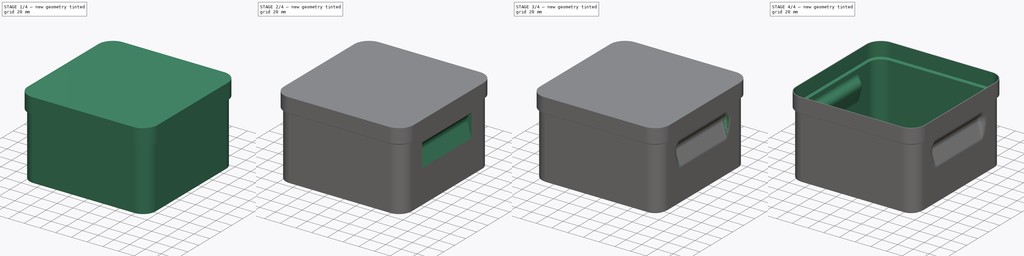
[diagram: build sequence overview — one tinted view per stage of 4, left to right]
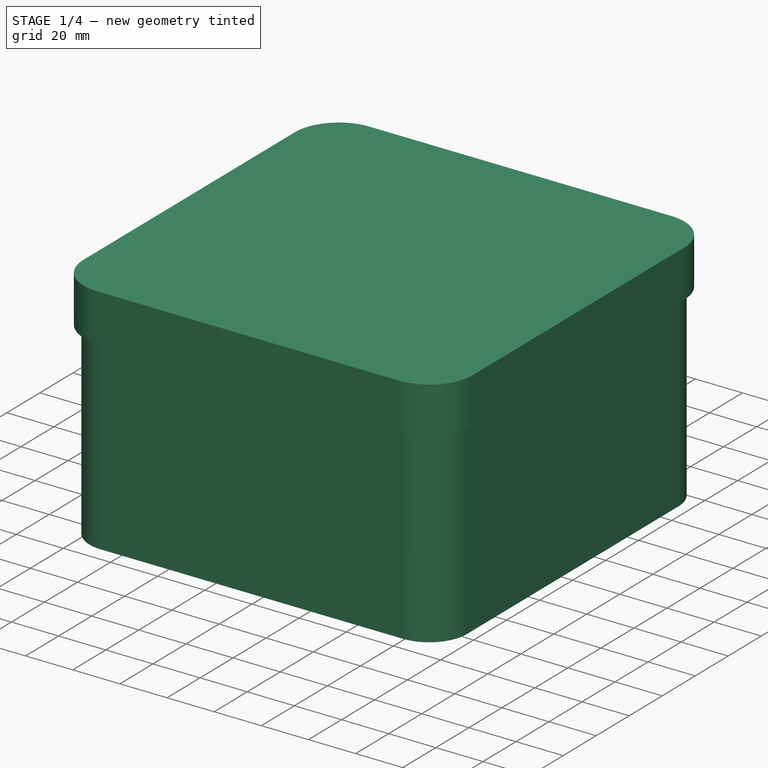
[diagram: stage 1 of 4 — iso view after this stage's code; geometry added in this stage tinted green]
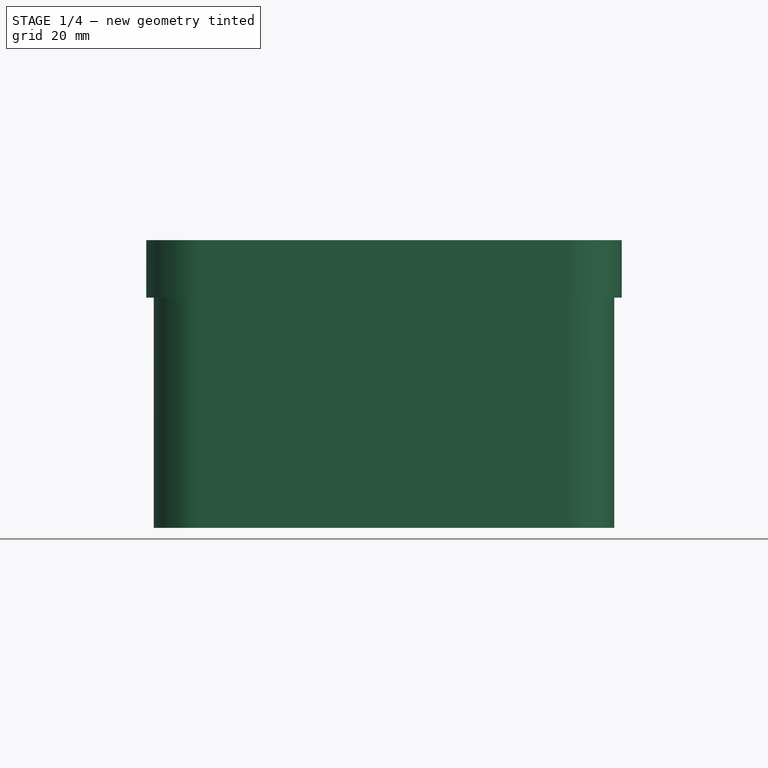
[diagram: stage 1 of 4 — front view after this stage's code; geometry added in this stage tinted green]
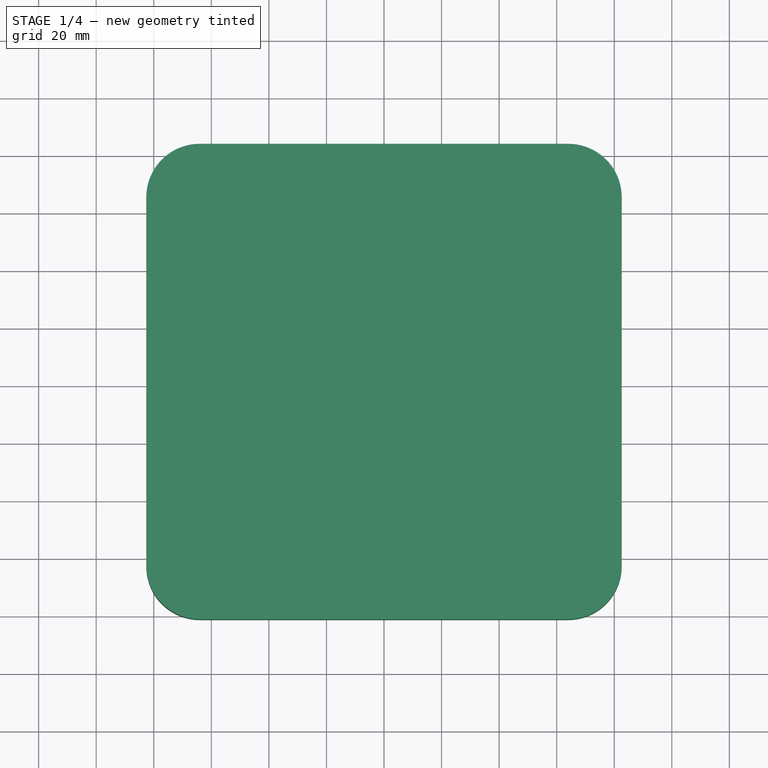
[diagram: stage 1 of 4 — top view after this stage's code; geometry added in this stage tinted green]
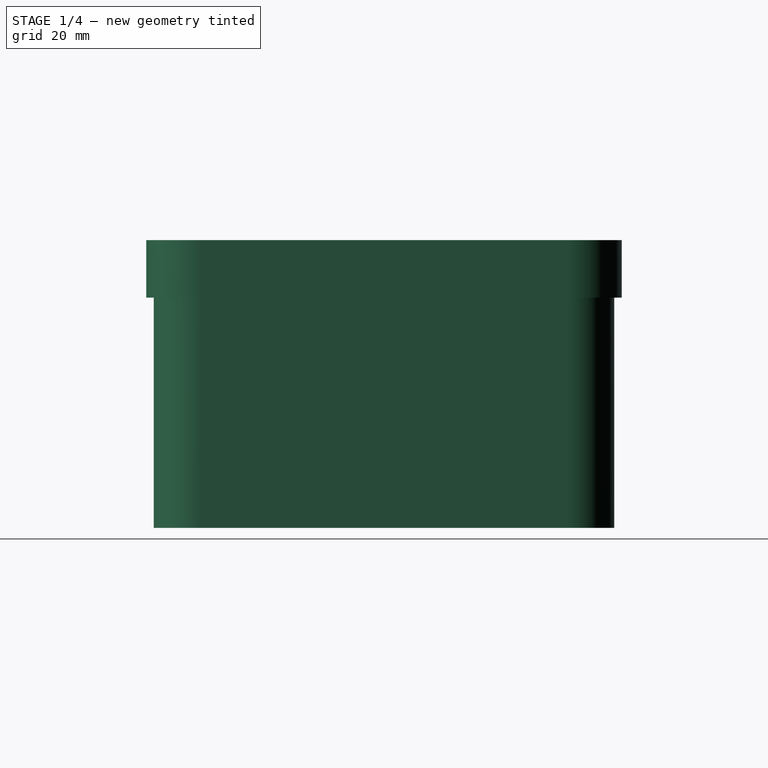
[diagram: stage 1 of 4 — right view after this stage's code; geometry added in this stage tinted green]
FCSTD DOCUMENT  (FreeCAD 0.20R29410 (Git))
Label: _StackableBox
License: Creative Commons Attribution
LicenseURL: http://creativecommons.org/licenses/by/4.0/
objects: Sketcher::SketchObject×3, PartDesign::Pad×2, PartDesign::Chamfer×2, PartDesign::Fillet×2, PartDesign::Body×2, PartDesign::Pocket×1, PartDesign::Mirrored×1, Part::Refine×1, PartDesign::FeatureBase×1, PartDesign::Thickness×1
note: 24 computed .brp shape members not serialized (recipe doc carries the construction recipe); baked Part::Feature solids carry a one-line shape summary decoded from their .brp

FEATURE [Sketcher::SketchObject] Sketch
  FullyConstrained = true
  MapMode = 5
  Support = -> [XY_Plane]
  sketch-geometry (9):
    g0: LineSegment StartX=-80 StartY=-64 StartZ=0 EndX=-80 EndY=64 EndZ=0
    g1: LineSegment StartX=-64 StartY=80 StartZ=0 EndX=64 EndY=80 EndZ=0
    g2: LineSegment StartX=80 StartY=64 StartZ=0 EndX=80 EndY=-64 EndZ=0
    g3: LineSegment StartX=64 StartY=-80 StartZ=0 EndX=-64 EndY=-80 EndZ=0
    g4: GeomPoint X=0 Y=0 Z=0
    g5: ArcOfCircle CenterX=-64 CenterY=64 CenterZ=0 NormalX=0 NormalY=0 NormalZ=1 AngleXU=0 Radius=16 StartAngle=1.5708 EndAngle=3.14159
    g6: ArcOfCircle CenterX=64 CenterY=64 CenterZ=0 NormalX=0 NormalY=0 NormalZ=1 AngleXU=0 Radius=16 StartAngle=1e-16 EndAngle=1.5708
    g7: ArcOfCircle CenterX=64 CenterY=-64 CenterZ=0 NormalX=0 NormalY=0 NormalZ=1 AngleXU=0 Radius=16 StartAngle=4.71239 EndAngle=6.28319
    g8: ArcOfCircle CenterX=-64 CenterY=-64 CenterZ=0 NormalX=0 NormalY=0 NormalZ=1 AngleXU=0 Radius=16 StartAngle=3.14159 EndAngle=4.71239
  constraints (20):
    c: Horizontal(g1)
    c: Horizontal(g3)
    c: Vertical(g0)
    c: Vertical(g2)
    c: Coincident(g4,g-1)
    c: Tangent(g1,g5) = 1.5708
    c: Tangent(g0,g5) = 1.5708
    c: Tangent(g1,g6) = 1.5708
    c: Tangent(g2,g6) = 1.5708
    c: Tangent(g2,g7) = 1.5708
    c: Tangent(g3,g7) = 1.5708
    c: Tangent(g0,g8) = 1.5708
    c: Tangent(g3,g8) = 1.5708
    c: Equal(g5,g6)
    c: Equal(g6,g7)
    c: Equal(g7,g8)
    c: Equal(g0,g1)
    c: Symmetric(g8,g6,g4)
    c: DistanceX(g0,g2) = 160
    c: Radius(g6) = 16
FEATURE [PartDesign::Pad] Pad
  Direction = (0,0,1)
  Length = 80
  Length2 = 10
  Profile = -> Sketch
  ReferenceAxis = -> Sketch [N_Axis]
  Type = 0
FEATURE [Sketcher::SketchObject] Sketch001
  AttachmentOffset = pos=(0,0,80) rot=(0,0,1;0rad)
  ExternalGeometry = -> [Sketch]
  FullyConstrained = true
  MapMode = 5
  Placement = pos=(0,0,80) rot=(0,0,1;0rad)
  Support = -> [XY_Plane]
  expr: .AttachmentOffset.Base.z = Pad.Length
  sketch-geometry (8):
    g0: ArcOfCircle CenterX=-64 CenterY=64 CenterZ=0 NormalX=0 NormalY=0 NormalZ=1 AngleXU=0 Radius=18.6 StartAngle=1.5708 EndAngle=3.14159
    g1: ArcOfCircle CenterX=64 CenterY=64 CenterZ=0 NormalX=0 NormalY=0 NormalZ=1 AngleXU=0 Radius=18.6 StartAngle=1e-16 EndAngle=1.5708
    g2: ArcOfCircle CenterX=64 CenterY=-64 CenterZ=0 NormalX=0 NormalY=0 NormalZ=1 AngleXU=0 Radius=18.6 StartAngle=4.71239 EndAngle=6.28319
    g3: ArcOfCircle CenterX=-64 CenterY=-64 CenterZ=0 NormalX=0 NormalY=0 NormalZ=1 AngleXU=0 Radius=18.6 StartAngle=3.14159 EndAngle=4.71239
    g4: LineSegment StartX=-82.6 StartY=64 StartZ=0 EndX=-82.6 EndY=-64 EndZ=0
    g5: LineSegment StartX=-64 StartY=-82.6 StartZ=0 EndX=64 EndY=-82.6 EndZ=0
    g6: LineSegment StartX=82.6 StartY=-64 StartZ=0 EndX=82.6 EndY=64 EndZ=0
    g7: LineSegment StartX=64 StartY=82.6 StartZ=0 EndX=-64 EndY=82.6 EndZ=0
  constraints (17):
    c: Coincident(g0,g-3)
    c: Coincident(g1,g-4)
    c: Coincident(g2,g-5)
    c: Coincident(g3,g-6)
    c: Vertical(g4)
    c: Coincident(g5,g2)
    c: Horizontal(g5)
    c: Tangent(g5,g2)
    c: Vertical(g6)
    c: Tangent(g7,g0) = -1.5708
    c: Tangent(g4,g0) = -1.5708
    c: Tangent(g4,g3) = -1.5708
    c: Tangent(g5,g3) = -1.5708
    c: Tangent(g6,g2) = -1.5708
    c: Tangent(g6,g1) = -1.5708
    c: Tangent(g7,g1) = -1.5708
    c: DistanceX(g0,g-3) = 2.6
FEATURE [PartDesign::Pad] Pad001
  BaseFeature = -> Pad
  Direction = (0,0,1)
  Length = 20
  Length2 = 10
  Profile = -> Sketch001
  ReferenceAxis = -> Sketch001 [N_Axis]
  Type = 0
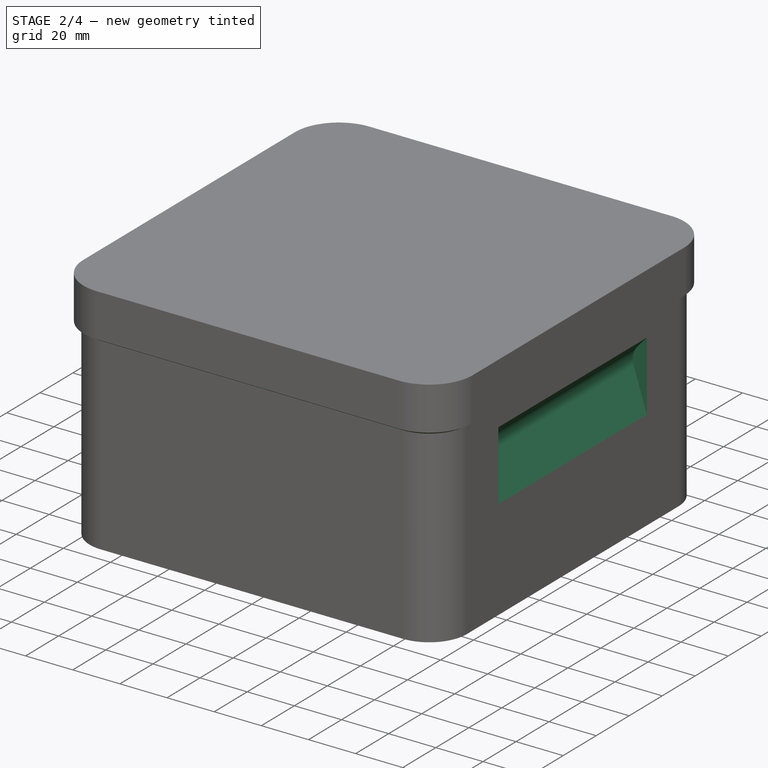
[diagram: stage 2 of 4 — iso view after this stage's code; geometry added in this stage tinted green]
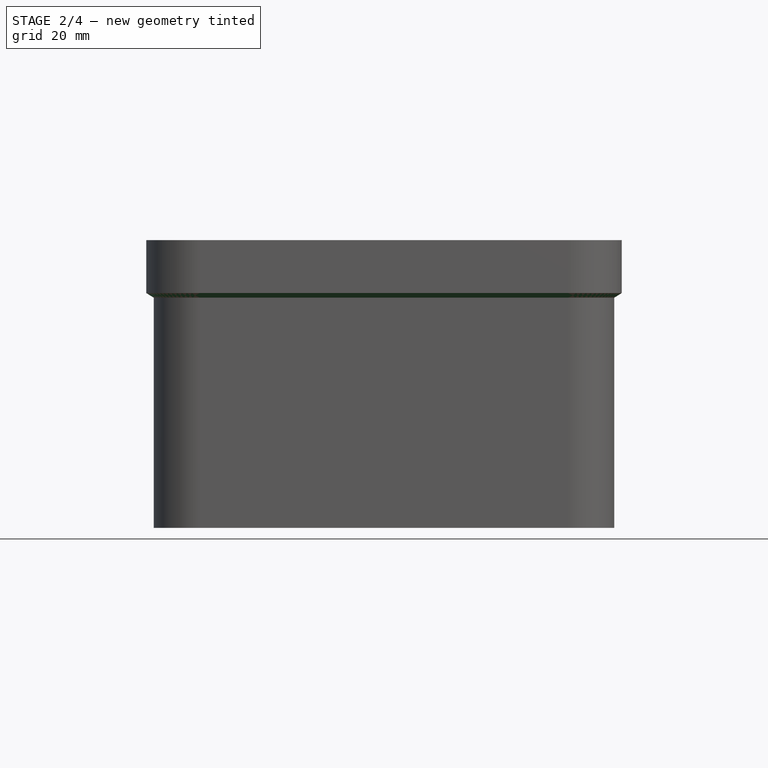
[diagram: stage 2 of 4 — front view after this stage's code; geometry added in this stage tinted green]
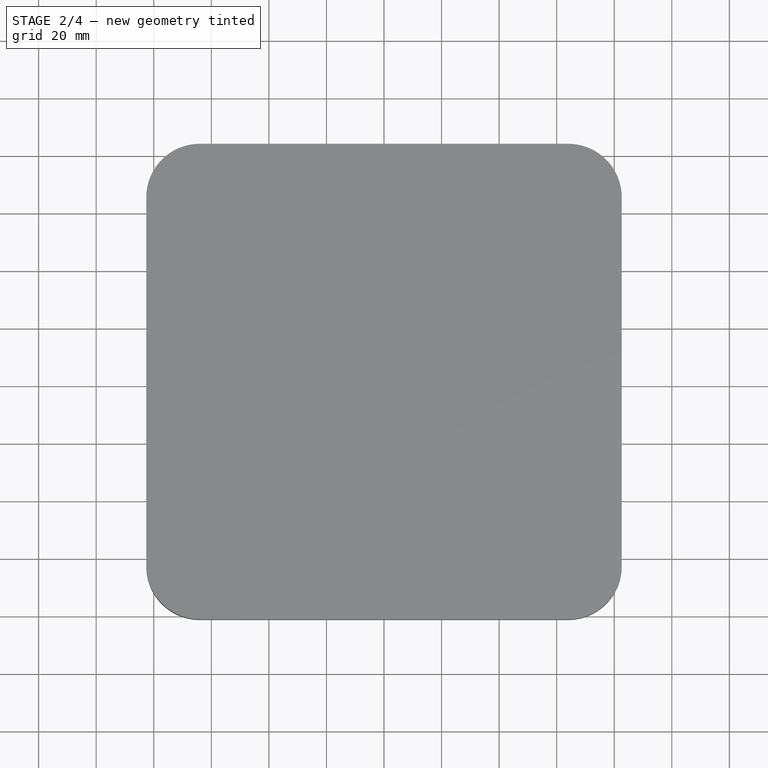
[diagram: stage 2 of 4 — top view after this stage's code; geometry added in this stage tinted green]
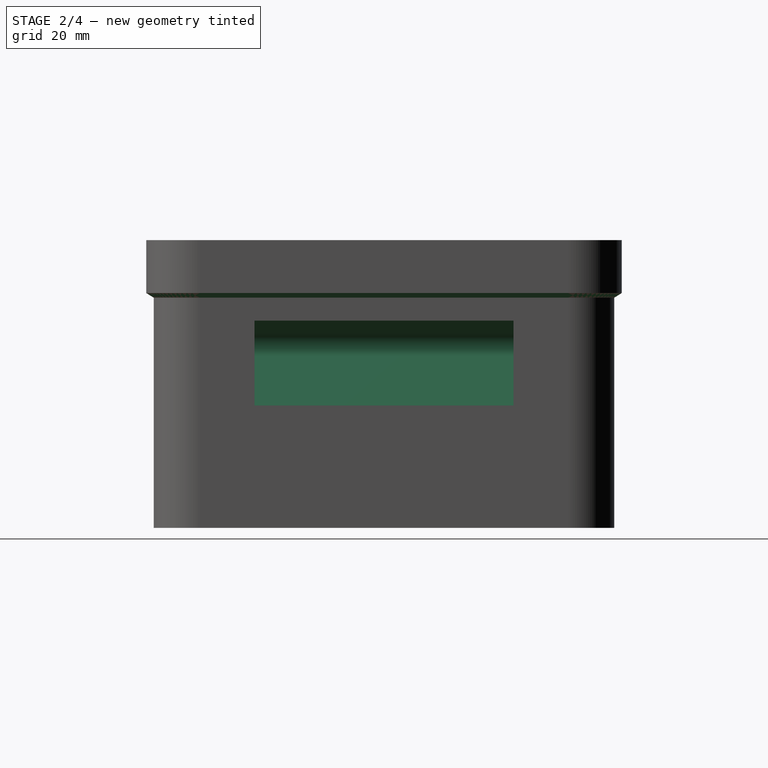
[diagram: stage 2 of 4 — right view after this stage's code; geometry added in this stage tinted green]
FEATURE [Sketcher::SketchObject] Sketch002
  ExternalGeometry = -> [Sketch,Sketch001]
  FullyConstrained = true
  MapMode = 5
  Placement = pos=(0,0,0) rot=(1,0,0;1.5708rad)
  Support = -> [XZ_Plane]
  sketch-geometry (9):
    g0: LineSegment StartX=82.6 StartY=74.8876 StartZ=0 EndX=76.0548 EndY=67.6185 EndZ=0
    g1: LineSegment StartX=74.3915 StartY=59.7933 StartZ=0 EndX=82.6 EndY=34.5303 EndZ=0
    g2: LineSegment StartX=82.6 StartY=34.5303 StartZ=0 EndX=82.6 EndY=74.8876 EndZ=0
    g3: ArcOfCircle CenterX=82 CenterY=62.2654 CenterZ=0 NormalX=0 NormalY=0 NormalZ=1 AngleXU=0 Radius=8 StartAngle=2.40855 EndAngle=3.45575
    g4: GeomPoint X=72.9643 Y=64.186 Z=0
    g5: LineSegment StartX=80 StartY=1.42e-14 StartZ=0 EndX=80 EndY=80 EndZ=0
    g6: LineSegment StartX=82.6 StartY=62.2654 StartZ=0 EndX=74 EndY=62.2654 EndZ=0
    g7: GeomPoint X=80 Y=72 Z=0
    g8: GeomPoint X=80 Y=42.5322 Z=0
  constraints (25):
    c: Coincident(g1,g2)
    c: Coincident(g2,g0)
    c: Vertical(g2)
    c: PointOnObject(g4,g0)
    c: PointOnObject(g4,g1)
    c: Tangent(g0,g3) = -1.5708
    c: Tangent(g1,g3) = -1.5708
    c: Radius(g3) = 8
    c: Angle(g1,g0) = 2.0944
    c: Coincident(g5,g-3)
    c: Vertical(g5)
    c: Horizontal(g5,g-4)
    c: PointOnObject(g6,g2)
    c: PointOnObject(g6,g3)
    c: Horizontal(g6)
    c: PointOnObject(g3,g6)
    c: DistanceX(g6,g5) = 6
    c: PointOnObject(g7,g0)
    c: PointOnObject(g8,g1)
    c: PointOnObject(g7,g5)
    c: PointOnObject(g8,g5)
    c: DistanceY(g8,g7) = 29.4678
    c: DistanceY(g7,g-4) = 8
    c: Angle(g6,g0) = 0.837758
    c: Vertical(g0,g-4)
FEATURE [PartDesign::Pocket] Pocket
  BaseFeature = -> Pad001
  Direction = (0,1,-2e-16)
  Length = 90
  Length2 = 5
  Midplane = true
  Profile = -> Sketch002
  ReferenceAxis = -> Sketch002 [N_Axis]
  Type = 0
FEATURE [PartDesign::Mirrored] Mirrored
  BaseFeature = -> Pocket
  MirrorPlane = -> Sketch002 [V_Axis]
  Originals = -> [Pocket]
FEATURE [PartDesign::Chamfer] Chamfer
  Angle = 45
  Base = -> Mirrored [Edge14]
  BaseFeature = -> Mirrored
  ChamferType = 1
  FlipDirection = false
  Size = 2.58
  Size2 = 1.6
  SupportTransform = false
  UseAllEdges = false
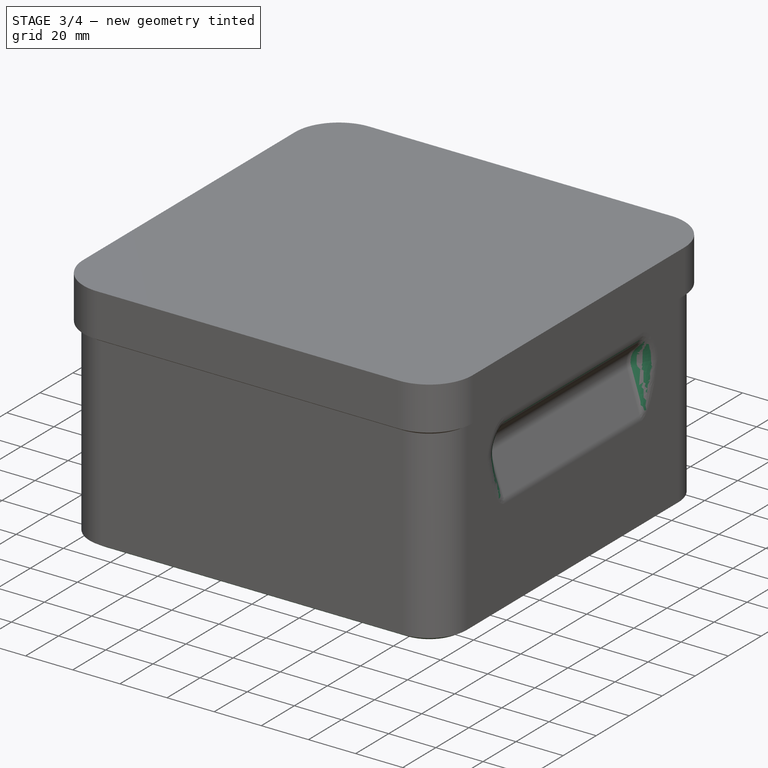
[diagram: stage 3 of 4 — iso view after this stage's code; geometry added in this stage tinted green]
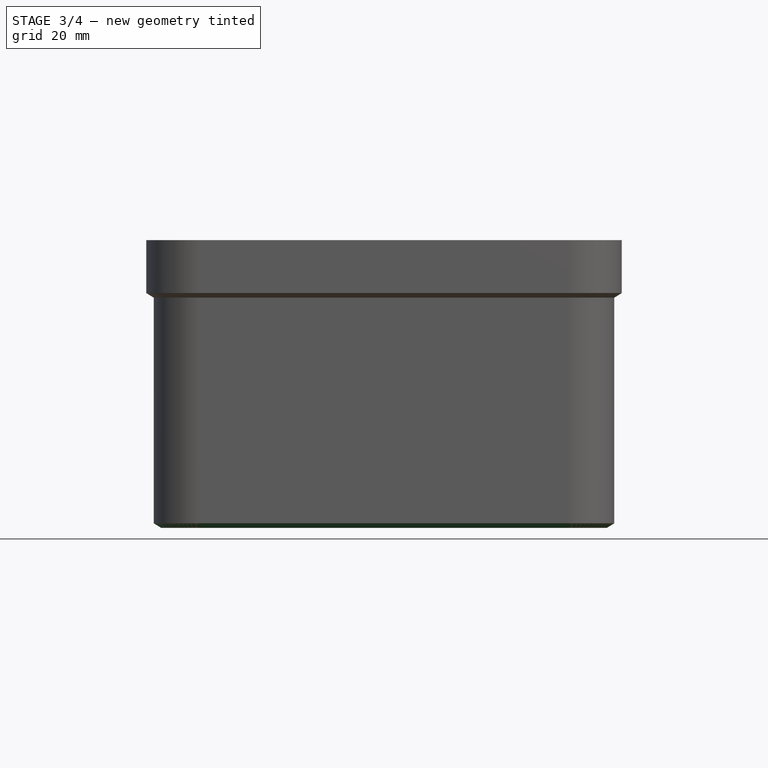
[diagram: stage 3 of 4 — front view after this stage's code; geometry added in this stage tinted green]
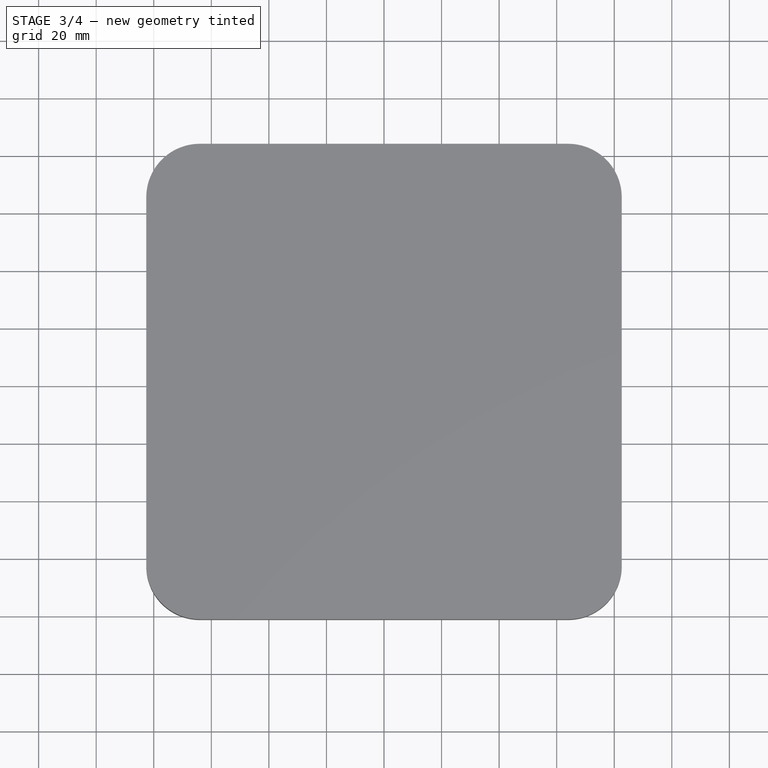
[diagram: stage 3 of 4 — top view after this stage's code; geometry added in this stage tinted green]
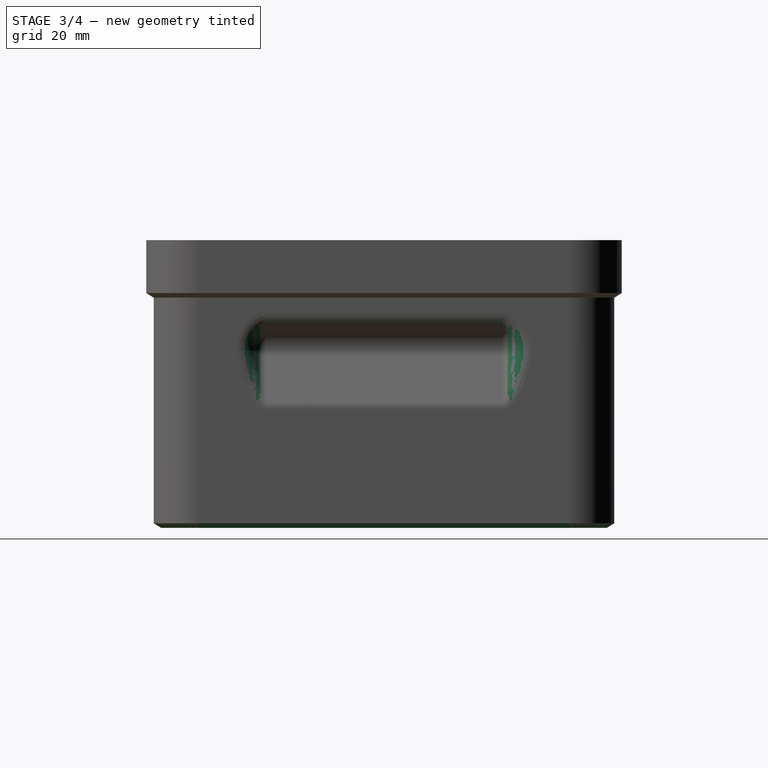
[diagram: stage 3 of 4 — right view after this stage's code; geometry added in this stage tinted green]
FEATURE [PartDesign::Chamfer] Chamfer001
  Angle = 45
  Base = -> Chamfer [Edge53]
  BaseFeature = -> Chamfer
  ChamferType = 1
  FlipDirection = false
  Size = 1.6
  Size2 = 2.6
  SupportTransform = false
  UseAllEdges = false
FEATURE [PartDesign::Fillet] Fillet
  Base = -> Chamfer001 [Edge36,Edge41,Edge104,Edge100]
  BaseFeature = -> Chamfer001
  Radius = 4
  SupportTransform = false
  UseAllEdges = false
FEATURE [PartDesign::Fillet] Fillet001
  Base = -> Fillet [Edge2,Edge1,Edge3,Edge5,Edge7,Edge8,Edge6,Edge4,Edge84,Edge82,Edge83,Edge85,Edge87,Edge89,Edge88,Edge86]
  BaseFeature = -> Fillet
  Radius = 8
  SupportTransform = false
  UseAllEdges = false
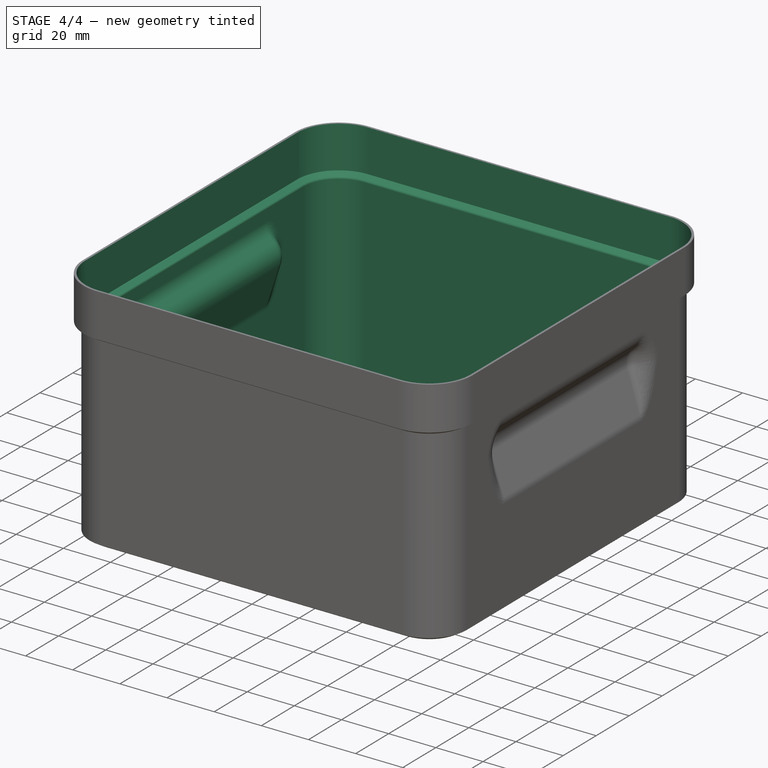
[diagram: stage 4 of 4 — iso view after this stage's code; geometry added in this stage tinted green]
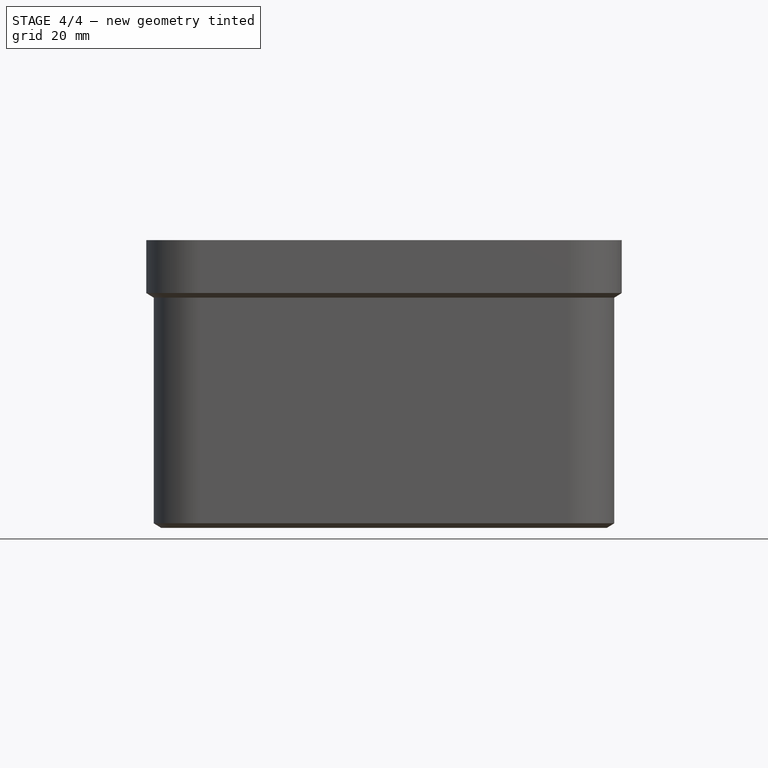
[diagram: stage 4 of 4 — front view after this stage's code; geometry added in this stage tinted green]
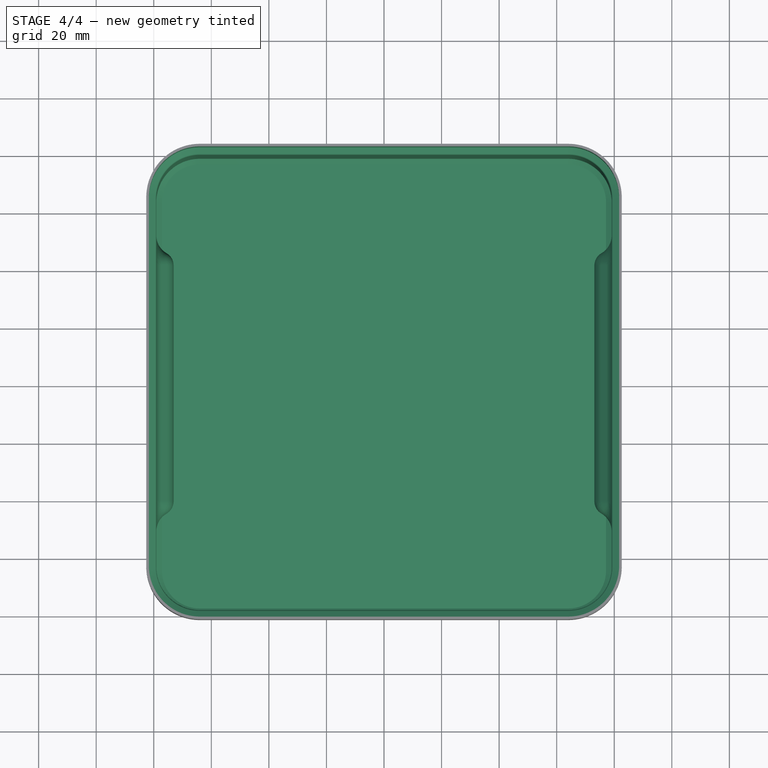
[diagram: stage 4 of 4 — top view after this stage's code; geometry added in this stage tinted green]
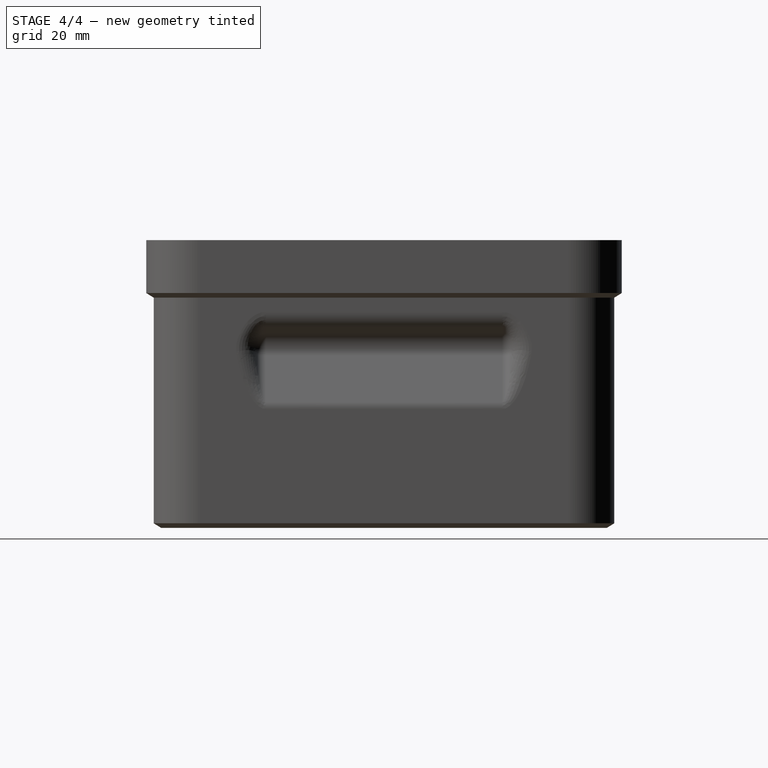
[diagram: stage 4 of 4 — right view after this stage's code; geometry added in this stage tinted green]
FEATURE [PartDesign::Body] Body
  Group = -> [Sketch,Pad,Sketch001,Pad001,Sketch002,Pocket,Mirrored,Chamfer,Chamfer001,Fillet,Fillet001]
  Origin = -> Origin
  Tip = -> Fillet001
FEATURE [Part::Refine] Body001
  Source = -> Body
FEATURE [PartDesign::FeatureBase] BaseFeature
  BaseFeature = -> Body001
FEATURE [PartDesign::Thickness] Thickness
  Base = -> BaseFeature [Face60]
  BaseFeature = -> BaseFeature
  Intersection = true
  Join = 0
  Mode = 0
  Reversed = true
  SupportTransform = false
  Value = 0.9
FEATURE [PartDesign::Body] Body002
  BaseFeature = -> Body001
  Group = -> [BaseFeature,Thickness]
  Origin = -> Origin001
  Tip = -> Thickness
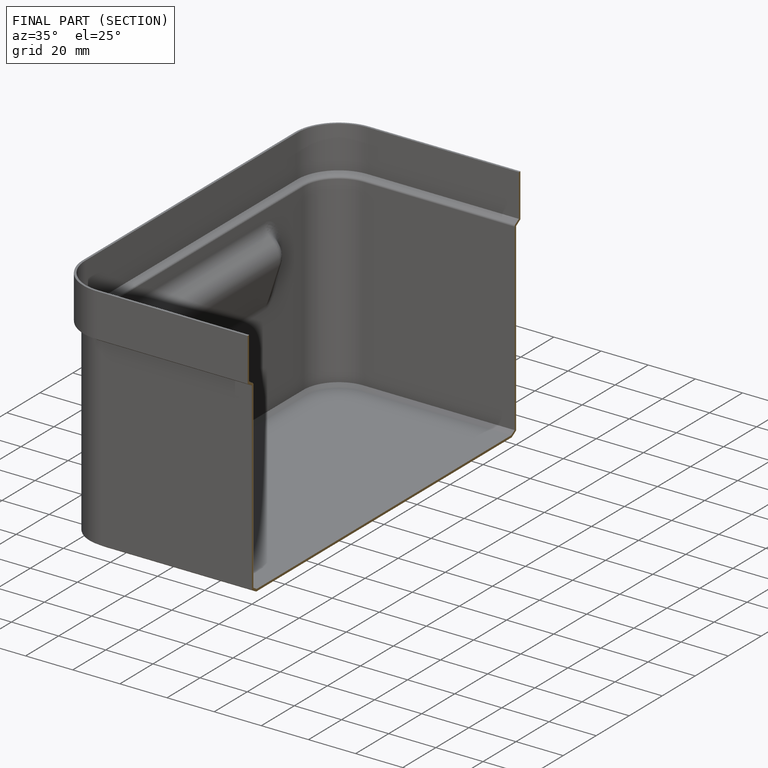
[diagram: finished part — half-section view (interior)]
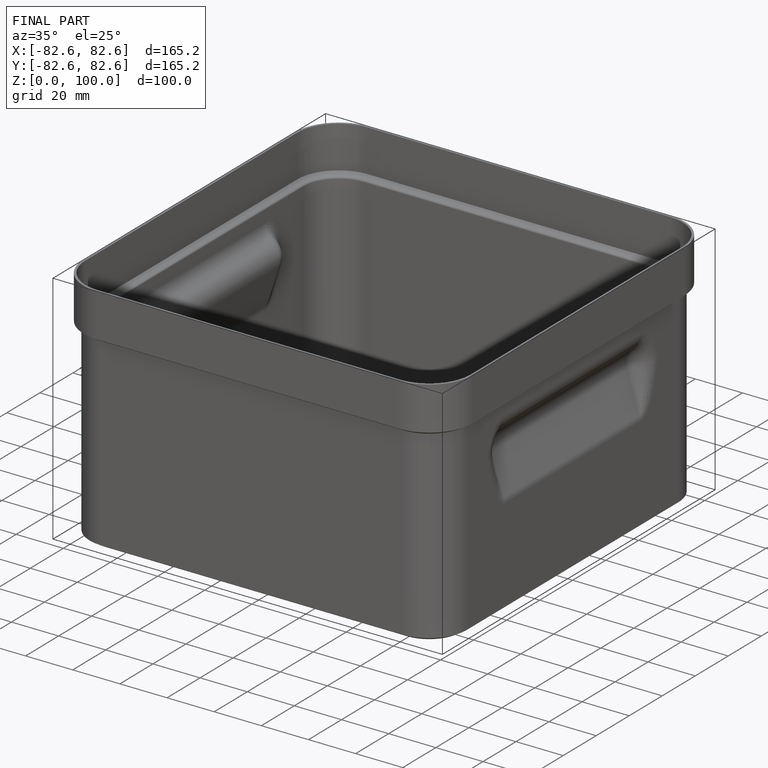
[diagram: finished part — iso view with bounding-box wireframe]
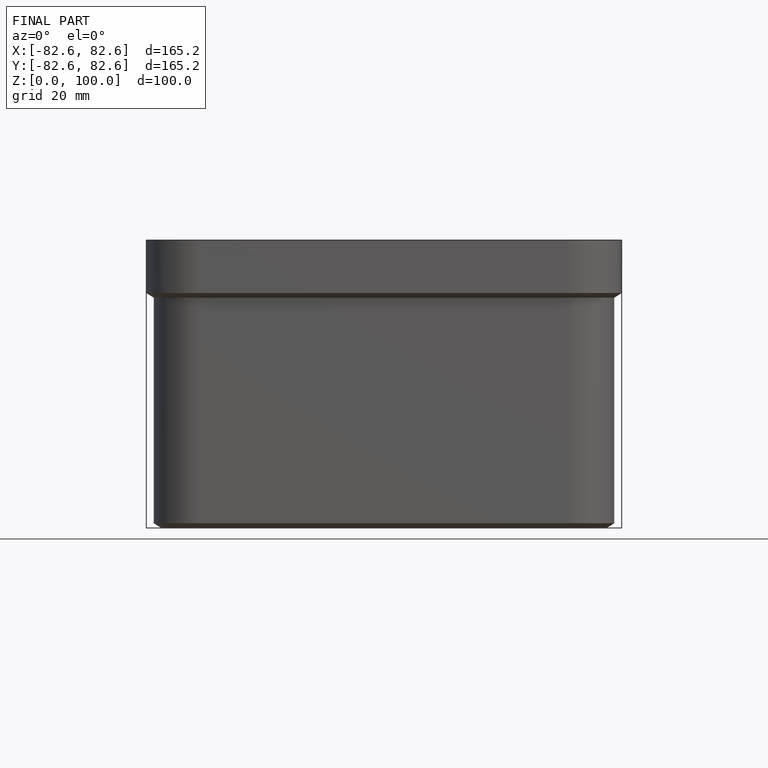
[diagram: finished part — front view with bounding-box wireframe]
